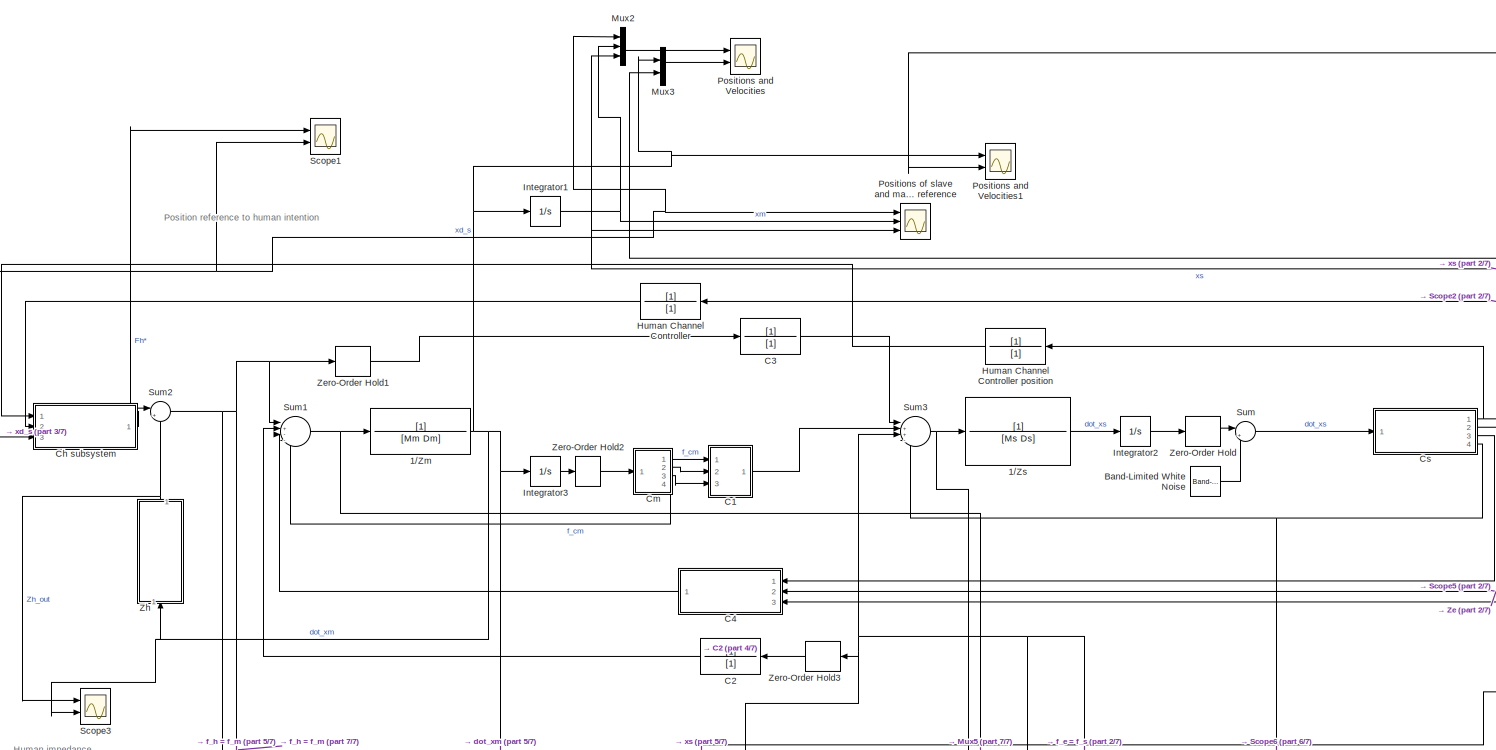
[diagram: root canvas - part 1/7, top center region]
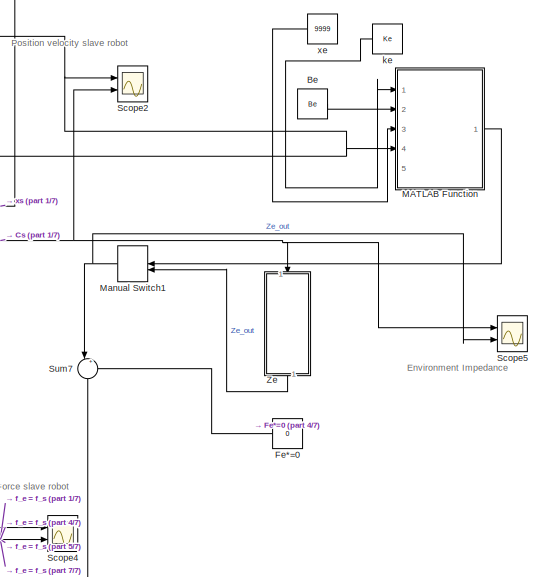
[diagram: root canvas - part 2/7, middle right region]
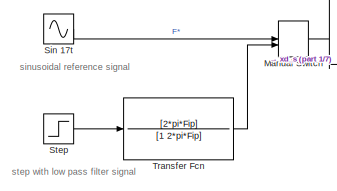
[diagram: root canvas - part 3/7, top left region]
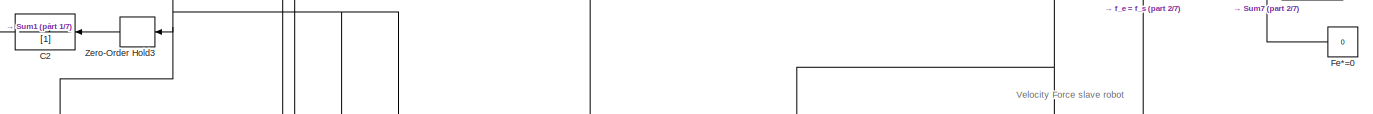
[diagram: root canvas - part 4/7, central region]
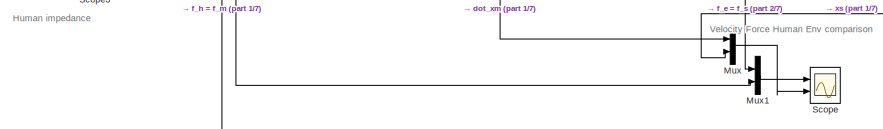
[diagram: root canvas - part 5/7, middle left region]
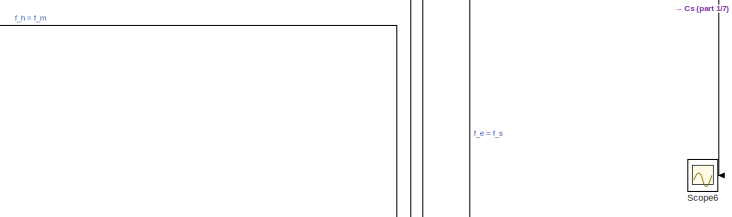
[diagram: root canvas - part 6/7, central region]
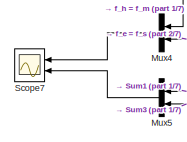
[diagram: root canvas - part 7/7, bottom center region]
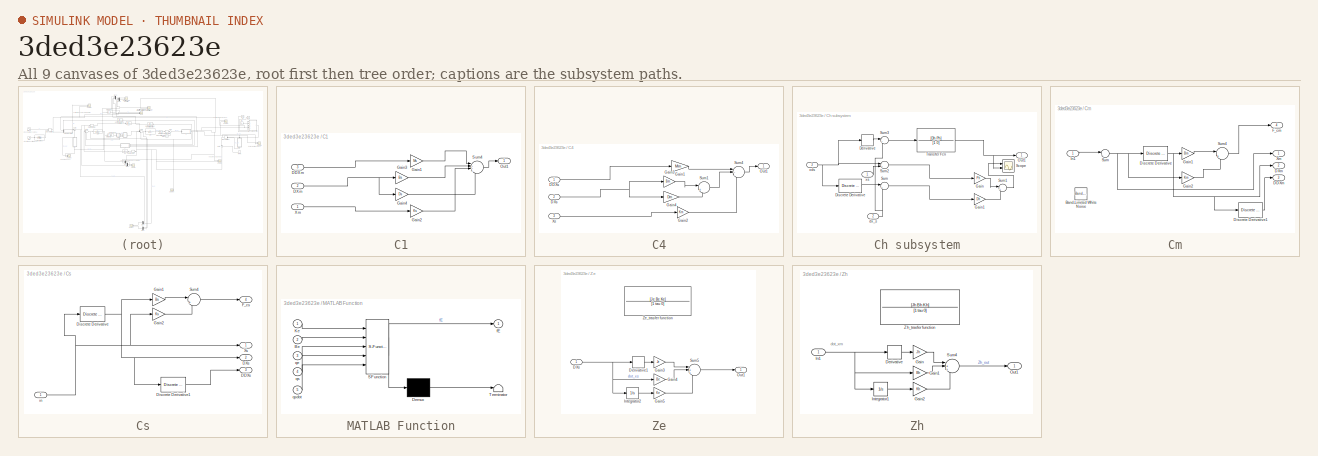
[diagram: thumbnail index - all 9 canvases of the model, root first then tree order]
MODEL slx_3ded3e23623e
KIND model
CONFIG AbsTol = auto
CONFIG EnableMultiTasking = off
CONFIG FixedStep = 0.001
CONFIG MaxStep = auto
CONFIG MinStep = auto
CONFIG RelTol = 1e-3
CONFIG SampleTimeConstraint = Unconstrained
CONFIG SolverName = FixedStepAuto
CONFIG StartTime = 0.0
CONFIG StopTime = 4.0
BLOCK [TransferFcn] 1//Zm
  Denominator = [Mm Dm]
  NameLocation = top
BLOCK [TransferFcn] 1//Zs
  Denominator = [Ms Ds]
  NameLocation = top
BLOCK [Reference] Band-Limited White Noise  REF=simulink/Sources/Band-Limited
White Noise
  Ports = [0, 1]
  SourceBlock = simulink/Sources/Band-Limited\nWhite Noise
  SourceProductBaseCode = SL
  SourceType = Band-Limited White Noise.
BLOCK [Constant] Be
  NameLocation = top
  Value = Be
BLOCK [SubSystem] C1
  Ports = [3, 1]
  RequestExecContextInheritance = off
BLOCK [Inport] C1/DDXm
  Port = 3
BLOCK [Inport] C1/DXm
  Port = 2
BLOCK [Gain] C1/Gain1
  Gain = Ms
BLOCK [Gain] C1/Gain2
  Gain = Ks
BLOCK [Gain] C1/Gain3
  Gain = Bs
BLOCK [Gain] C1/Gain4
  Gain = Ds
BLOCK [Outport] C1/Out1
BLOCK [Sum] C1/Sum4
  Inputs = |++++
  Ports = [4, 1]
BLOCK [Inport] C1/Xm
BLOCK [TransferFcn] C2
  Denominator = [1]
BLOCK [TransferFcn] C3
  Denominator = [1]
  NameLocation = top
BLOCK [SubSystem] C4
  NameLocation = top
  Ports = [3, 1]
  RequestExecContextInheritance = off
BLOCK [Inport] C4/DDXs
BLOCK [Inport] C4/DXs
  Port = 2
BLOCK [Gain] C4/Gain1
  Gain = Mm
BLOCK [Gain] C4/Gain2
  Gain = Km
BLOCK [Gain] C4/Gain3
  Gain = Bm
BLOCK [Gain] C4/Gain4
  Gain = Dm
BLOCK [Outport] C4/Out1
BLOCK [Sum] C4/Sum1
  Inputs = |++
  Ports = [2, 1]
BLOCK [Sum] C4/Sum4
  Inputs = |---
  Ports = [3, 1]
BLOCK [Inport] C4/Xs
  Port = 3
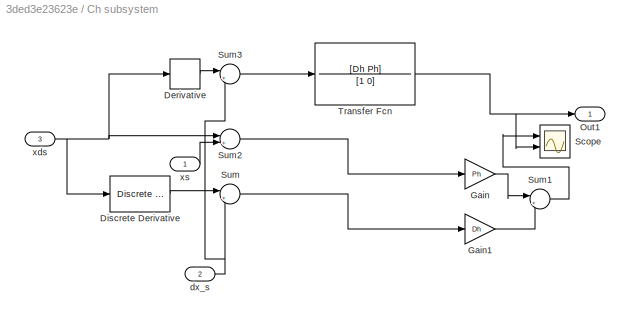
BLOCK [SubSystem] Ch subsystem
  Ports = [3, 1]
  RequestExecContextInheritance = off
BLOCK [Derivative] Ch subsystem/Derivative
BLOCK [Reference] Ch subsystem/Discrete Derivative  REF=simulink/Discrete/Discrete Derivative
  Ports = [1, 1]
  SourceBlock = simulink/Discrete/Discrete Derivative
  SourceProductBaseCode = SL
  SourceType = Discrete Derivative
BLOCK [Gain] Ch subsystem/Gain
  Gain = Ph
BLOCK [Gain] Ch subsystem/Gain1
  Gain = Dh
BLOCK [Outport] Ch subsystem/Out1
BLOCK [Scope] Ch subsystem/Scope
  Floating = off
  NumInputPorts = 2
  Ports = [2]
  ScopeSpecificationString = Simulink.scopes.TimeScopeBlockCfg('CurrentConfiguration', extmgr.ConfigurationSet(extmgr.Configuration('Core','General UI',true),extmgr.Configuration('Core','Source UI',true),extmgr.Configuration('Sources','WiredSimulink',true,'DataLoggingVariableName','ScopeData1'),extmgr.Configuration('Visuals','Time Domain',true,'SerializedDisplays',{struct('MinYLimReal','-241.10515','MaxYLimReal','246.9776','Y...<+1388ch>
BLOCK [Sum] Ch subsystem/Sum
  Inputs = |+-
  Ports = [2, 1]
BLOCK [Sum] Ch subsystem/Sum1
  Inputs = |++
  Ports = [2, 1]
BLOCK [Sum] Ch subsystem/Sum2
  Inputs = |+-
  Ports = [2, 1]
BLOCK [Sum] Ch subsystem/Sum3
  Inputs = |+-
  Ports = [2, 1]
BLOCK [TransferFcn] Ch subsystem/Transfer Fcn
  Denominator = [1 0]
  Numerator = [Dh Ph]
BLOCK [Inport] Ch subsystem/dx_s
  Port = 2
BLOCK [Inport] Ch subsystem/xds
  Port = 3
BLOCK [Inport] Ch subsystem/xs
BLOCK [SubSystem] Cm
  Ports = [1, 4]
  RequestExecContextInheritance = off
BLOCK [Reference] Cm/Band-Limited White Noise  REF=simulink/Sources/Band-Limited
White Noise
  Ports = [0, 1]
  SourceBlock = simulink/Sources/Band-Limited\nWhite Noise
  SourceProductBaseCode = SL
  SourceType = Band-Limited White Noise.
BLOCK [Outport] Cm/DDXm
  Port = 3
BLOCK [Outport] Cm/DXm
  Port = 2
BLOCK [Reference] Cm/Discrete Derivative  REF=simulink/Discrete/Discrete Derivative
  Ports = [1, 1]
  SourceBlock = simulink/Discrete/Discrete Derivative
  SourceProductBaseCode = SL
  SourceType = Discrete Derivative
BLOCK [Reference] Cm/Discrete Derivative1  REF=simulink/Discrete/Discrete Derivative
  Ports = [1, 1]
  SourceBlock = simulink/Discrete/Discrete Derivative
  SourceProductBaseCode = SL
  SourceType = Discrete Derivative
BLOCK [Outport] Cm/F_cm
  Port = 4
BLOCK [Gain] Cm/Gain1
  Gain = Bm
BLOCK [Gain] Cm/Gain2
  Gain = Km
BLOCK [Inport] Cm/In1
BLOCK [Sum] Cm/Sum
  Inputs = |++
  Ports = [2, 1]
BLOCK [Sum] Cm/Sum4
  Inputs = |++
  Ports = [2, 1]
BLOCK [Outport] Cm/Xm
BLOCK [SubSystem] Cs
  Ports = [1, 4]
  RequestExecContextInheritance = off
BLOCK [Outport] Cs/DDXs
  Port = 3
BLOCK [Outport] Cs/DXs
  Port = 2
BLOCK [Reference] Cs/Discrete Derivative  REF=simulink/Discrete/Discrete Derivative
  Ports = [1, 1]
  SourceBlock = simulink/Discrete/Discrete Derivative
  SourceProductBaseCode = SL
  SourceType = Discrete Derivative
BLOCK [Reference] Cs/Discrete Derivative1  REF=simulink/Discrete/Discrete Derivative
  Ports = [1, 1]
  SourceBlock = simulink/Discrete/Discrete Derivative
  SourceProductBaseCode = SL
  SourceType = Discrete Derivative
BLOCK [Outport] Cs/F_cs
  Port = 4
BLOCK [Gain] Cs/Gain1
  Gain = Bs
BLOCK [Gain] Cs/Gain2
  Gain = Ks
BLOCK [Sum] Cs/Sum4
  Inputs = |++
  Ports = [2, 1]
BLOCK [Outport] Cs/Xs
BLOCK [Inport] Cs/in
BLOCK [Constant] Fe*=0
  Value = 0
BLOCK [TransferFcn] Human Channel Controller
  Denominator = [1]
  NameLocation = top
BLOCK [TransferFcn] Human Channel Controller position
  Denominator = [1]
  NameLocation = top
BLOCK [Integrator] Integrator1
  Ports = [1, 1]
BLOCK [Integrator] Integrator2
  Ports = [1, 1]
BLOCK [Integrator] Integrator3
  Ports = [1, 1]
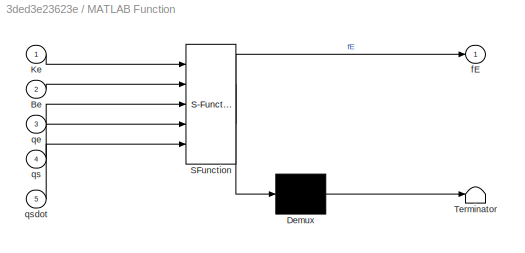
BLOCK [SubSystem] MATLAB Function
  ErrorFcn = Stateflow.Translate.translate
  PermitHierarchicalResolution = ExplicitOnly
  Ports = [5, 1]
  RequestExecContextInheritance = off
  SFBlockType = MATLAB Function
  TreatAsAtomicUnit = on
BLOCK [Demux] MATLAB Function/ Demux 
  Outputs = 1
  Ports = [1, 1]
BLOCK [S-Function] MATLAB Function/ SFunction 
  EnableBusSupport = on
  FunctionName = sf_sfun
  PortCounts = [5 2]
  Ports = [5, 2]
  SFcnIsStateOwnerBlock = off
  SFunctionDeploymentMode = off
  Tag = Stateflow S-Function 2
BLOCK [Terminator] MATLAB Function/ Terminator 
BLOCK [Inport] MATLAB Function/Be
  Port = 2
BLOCK [Inport] MATLAB Function/Ke
BLOCK [Outport] MATLAB Function/fE
BLOCK [Inport] MATLAB Function/qe
  Port = 3
BLOCK [Inport] MATLAB Function/qs
  Port = 4
BLOCK [Inport] MATLAB Function/qsdot
  Port = 5
BLOCK [ManualSwitch] Manual Switch
  CurrentSetting = 0
BLOCK [ManualSwitch] Manual Switch1
  CurrentSetting = 0
  NameLocation = top
BLOCK [Mux] Mux
  DisplayOption = bar
  Inputs = 2
  Ports = [2, 1]
BLOCK [Mux] Mux1
  DisplayOption = bar
  Inputs = 2
  Ports = [2, 1]
BLOCK [Mux] Mux2
  DisplayOption = bar
  Inputs = 3
  Ports = [3, 1]
BLOCK [Mux] Mux3
  DisplayOption = bar
  Inputs = 2
  Ports = [2, 1]
BLOCK [Mux] Mux4
  DisplayOption = bar
  Inputs = 2
  NameLocation = top
  Ports = [2, 1]
BLOCK [Mux] Mux5
  DisplayOption = bar
  Inputs = 2
  NameLocation = top
  Ports = [2, 1]
BLOCK [Scope] Positions and Velocities
  Floating = off
  NumInputPorts = 2
  Ports = [2]
  ScopeSpecificationString = Simulink.scopes.TimeScopeBlockCfg('CurrentConfiguration', extmgr.ConfigurationSet(extmgr.Configuration('Core','General UI',true,'FigureColor',[0.941176470588235 0.941176470588235 0.941176470588235]),extmgr.Configuration('Core','Source UI',true),extmgr.Configuration('Sources','WiredSimulink',true,'DataLoggingVariableName','ScopeData1'),extmgr.Configuration('Visuals','Time Domain',true,'SerializedDi...<+3026ch>
BLOCK [Scope] Positions and Velocities1
  Floating = off
  NumInputPorts = 2
  Ports = [2]
  ScopeSpecificationString = Simulink.scopes.TimeScopeBlockCfg('CurrentConfiguration', extmgr.ConfigurationSet(extmgr.Configuration('Core','General UI',true,'FigureColor',[0.941176470588235 0.941176470588235 0.941176470588235]),extmgr.Configuration('Core','Source UI',true),extmgr.Configuration('Sources','WiredSimulink',true,'DataLoggingVariableName','ScopeData2'),extmgr.Configuration('Visuals','Time Domain',true,'SerializedDi...<+1863ch>
BLOCK [Scope] Positions of slave and master and reference
  Floating = off
  NumInputPorts = 3
  Ports = [3]
  ScopeSpecificationString = Simulink.scopes.TimeScopeBlockCfg('CurrentConfiguration', extmgr.ConfigurationSet(extmgr.Configuration('Core','General UI',true),extmgr.Configuration('Core','Source UI',true),extmgr.Configuration('Sources','WiredSimulink',true,'DataLoggingVariableName','ScopeData1'),extmgr.Configuration('Visuals','Time Domain',true,'SerializedDisplays',{struct('MinYLimReal','-9.61803','MaxYLimReal','9.31494','YLab...<+1556ch>
BLOCK [Scope] Scope
  Floating = off
  NumInputPorts = 2
  Ports = [2]
  ScopeSpecificationString = Simulink.scopes.TimeScopeBlockCfg('CurrentConfiguration', extmgr.ConfigurationSet(extmgr.Configuration('Core','General UI',true,'FigureColor',[0.941176470588235 0.941176470588235 0.941176470588235]),extmgr.Configuration('Core','Source UI',true),extmgr.Configuration('Sources','WiredSimulink',true,'DataLoggingVariableName','ScopeData3'),extmgr.Configuration('Visuals','Time Domain',true,'SerializedDi...<+2415ch>
BLOCK [Scope] Scope1
  Floating = off
  NumInputPorts = 2
  Ports = [2]
  ScopeSpecificationString = Simulink.scopes.TimeScopeBlockCfg('CurrentConfiguration', extmgr.ConfigurationSet(extmgr.Configuration('Core','General UI',true,'FigureColor',[0.941176470588235 0.941176470588235 0.941176470588235]),extmgr.Configuration('Core','Source UI',true),extmgr.Configuration('Sources','WiredSimulink',true,'DataLoggingVariableName','ScopeData7'),extmgr.Configuration('Visuals','Time Domain',true,'SerializedDi...<+1868ch>
BLOCK [Scope] Scope2
  Floating = off
  NumInputPorts = 2
  Ports = [2]
  ScopeSpecificationString = Simulink.scopes.TimeScopeBlockCfg('CurrentConfiguration', extmgr.ConfigurationSet(extmgr.Configuration('Core','General UI',true,'FigureColor',[0.941176470588235 0.941176470588235 0.941176470588235]),extmgr.Configuration('Core','Source UI',true),extmgr.Configuration('Sources','WiredSimulink',true,'DataLoggingVariableName','ScopeData6'),extmgr.Configuration('Visuals','Time Domain',true,'SerializedDi...<+1845ch>
BLOCK [Scope] Scope3
  Floating = off
  NumInputPorts = 2
  Ports = [2]
  ScopeSpecificationString = Simulink.scopes.TimeScopeBlockCfg('CurrentConfiguration', extmgr.ConfigurationSet(extmgr.Configuration('Core','General UI',true,'FigureColor',[0.941176470588235 0.941176470588235 0.941176470588235]),extmgr.Configuration('Core','Source UI',true),extmgr.Configuration('Sources','WiredSimulink',true,'DataLoggingVariableName','ScopeData8'),extmgr.Configuration('Visuals','Time Domain',true,'SerializedDi...<+1865ch>
BLOCK [Scope] Scope4
  Floating = off
  NumInputPorts = 2
  Ports = [2]
  ScopeSpecificationString = Simulink.scopes.TimeScopeBlockCfg('CurrentConfiguration', extmgr.ConfigurationSet(extmgr.Configuration('Core','General UI',true,'FigureColor',[0.941176470588235 0.941176470588235 0.941176470588235]),extmgr.Configuration('Core','Source UI',true),extmgr.Configuration('Sources','WiredSimulink',true,'DataLoggingVariableName','ScopeData4'),extmgr.Configuration('Visuals','Time Domain',true,'SerializedDi...<+2061ch>
BLOCK [Scope] Scope5
  Floating = off
  NumInputPorts = 2
  Ports = [2]
  ScopeSpecificationString = Simulink.scopes.TimeScopeBlockCfg('CurrentConfiguration', extmgr.ConfigurationSet(extmgr.Configuration('Core','General UI',true,'FigureColor',[0.941176470588235 0.941176470588235 0.941176470588235]),extmgr.Configuration('Core','Source UI',true),extmgr.Configuration('Sources','WiredSimulink',true,'DataLoggingVariableName','ScopeData5'),extmgr.Configuration('Visuals','Time Domain',true,'SerializedDi...<+2061ch>
BLOCK [Scope] Scope6
  Floating = off
  NameLocation = top
  NumInputPorts = 1
  Ports = [1]
  ScopeSpecificationString = Simulink.scopes.TimeScopeBlockCfg('CurrentConfiguration', extmgr.ConfigurationSet(extmgr.Configuration('Core','General UI',true),extmgr.Configuration('Core','Source UI',true),extmgr.Configuration('Sources','WiredSimulink',true,'DataLoggingVariableName','ScopeData2'),extmgr.Configuration('Visuals','Time Domain',true,'SerializedDisplays',{struct('MinYLimReal','-2.42917','MaxYLimReal','3.20726','YLab...<+1363ch>
BLOCK [Scope] Scope7
  Floating = off
  NameLocation = top
  NumInputPorts = 2
  Ports = [2]
  ScopeSpecificationString = Simulink.scopes.TimeScopeBlockCfg('CurrentConfiguration', extmgr.ConfigurationSet(extmgr.Configuration('Core','General UI',true,'FigureColor',[0.941176470588235 0.941176470588235 0.941176470588235]),extmgr.Configuration('Core','Source UI',true),extmgr.Configuration('Sources','WiredSimulink',true,'DataLoggingVariableName','ScopeData1'),extmgr.Configuration('Visuals','Time Domain',true,'SerializedDi...<+2798ch>
BLOCK [Sin] Sin 17t
  Amplitude = A
  Frequency = 2*pi*Fc
  Ports = [0, 1]
  SampleTime = 0
BLOCK [Step] Step
  After = A
  SampleTime = 0
BLOCK [Sum] Sum
  Inputs = |++
  Ports = [2, 1]
BLOCK [Sum] Sum1
  Inputs = |+---
  Ports = [4, 1]
BLOCK [Sum] Sum2
  Inputs = |+-
  Ports = [2, 1]
BLOCK [Sum] Sum3
  Inputs = |++--
  Ports = [4, 1]
BLOCK [Sum] Sum7
  Inputs = |++
  NameLocation = right
  Ports = [2, 1]
BLOCK [TransferFcn] Transfer Fcn
  Denominator = [1 2*pi*Fip]
  Numerator = [2*pi*Fip]
BLOCK [SubSystem] Ze
  NameLocation = left
  Ports = [1, 1]
  RequestExecContextInheritance = off
BLOCK [Inport] Ze/DXs
BLOCK [Derivative] Ze/Derivative1
BLOCK [Gain] Ze/Gain3
  Gain = Je
BLOCK [Gain] Ze/Gain4
  Gain = Be
BLOCK [Gain] Ze/Gain5
  Gain = Ke
BLOCK [Integrator] Ze/Integrator2
  Ports = [1, 1]
BLOCK [Outport] Ze/Out1
BLOCK [Sum] Ze/Sum5
  Inputs = |+++
  Ports = [3, 1]
BLOCK [TransferFcn] Ze/Ze_trasfer function
  Commented = on
  Denominator = [1 tau 0]
  NameLocation = right
  Numerator = [Je Be Ke]
BLOCK [ZeroOrderHold] Zero-Order Hold
  SampleTime = -1
BLOCK [ZeroOrderHold] Zero-Order Hold1
  SampleTime = -1
BLOCK [ZeroOrderHold] Zero-Order Hold2
  SampleTime = -1
BLOCK [ZeroOrderHold] Zero-Order Hold3
  NameLocation = top
  SampleTime = -1
BLOCK [SubSystem] Zh
  NameLocation = right
  Ports = [1, 1]
  RequestExecContextInheritance = off
BLOCK [Derivative] Zh/Derivative
BLOCK [Gain] Zh/Gain
  Gain = Jh
BLOCK [Gain] Zh/Gain1
  Gain = Bh
BLOCK [Gain] Zh/Gain2
  Gain = Kh
BLOCK [Inport] Zh/In1
BLOCK [Integrator] Zh/Integrator1
  Ports = [1, 1]
BLOCK [Outport] Zh/Out1
BLOCK [Sum] Zh/Sum4
  Inputs = |+++
  Ports = [3, 1]
BLOCK [TransferFcn] Zh/Zh_trasfer function
  Commented = on
  Denominator = [1 tau 0]
  NameLocation = right
  Numerator = [Jh Bh Kh]
BLOCK [Constant] ke
  Value = Ke
BLOCK [Constant] xe
  Value = 9999
ANNOTATION (root): sinusoidal reference signal
ANNOTATION (root): step with low pass filter signal
ANNOTATION (root): Environment Impedance
ANNOTATION (root): Human impedance
ANNOTATION (root): Position reference to human intention
ANNOTATION (root): Position velocity slave robot
ANNOTATION (root): Velocity Force Human Env comparison
ANNOTATION (root): Velocity Force slave robot
ANNOTATION Zh: dot_xm
NET 1//Zm:1 -> Integrator1:1, Integrator3:1, Mux3:1, Mux:1, Positions and Velocities1:1, Scope3:2, Zh:1
LINE 1//Zs:1 -> Integrator2:1
LINE Band-Limited White Noise:1 -> Sum:2
LINE Be:1 -> MATLAB Function:2
LINE C1/DDXm:1 -> C1/Gain1:1
NET C1/DXm:1 -> C1/Gain3:1, C1/Gain4:1
LINE C1/Gain1:1 -> C1/Sum4:1
LINE C1/Gain2:1 -> C1/Sum4:3
LINE C1/Gain3:1 -> C1/Sum4:2
LINE C1/Gain4:1 -> C1/Sum4:4
LINE C1/Sum4:1 -> C1/Out1:1
LINE C1/Xm:1 -> C1/Gain2:1
LINE C1:1 -> Sum3:2
LINE C2:1 -> Sum1:2
LINE C3:1 -> Sum3:1
LINE C4/DDXs:1 -> C4/Gain1:1
NET C4/DXs:1 -> C4/Gain3:1, C4/Gain4:1
LINE C4/Gain1:1 -> C4/Sum4:1
LINE C4/Gain2:1 -> C4/Sum4:3
LINE C4/Gain3:1 -> C4/Sum1:1
LINE C4/Gain4:1 -> C4/Sum1:2
LINE C4/Sum1:1 -> C4/Sum4:2
LINE C4/Sum4:1 -> C4/Out1:1
LINE C4/Xs:1 -> C4/Gain2:1
LINE C4:1 -> Sum1:3
LINE Ch subsystem/Derivative:1 -> Ch subsystem/Sum3:1
LINE Ch subsystem/Discrete Derivative:1 -> Ch subsystem/Sum:1
LINE Ch subsystem/Gain1:1 -> Ch subsystem/Sum1:2
LINE Ch subsystem/Gain:1 -> Ch subsystem/Sum1:1
LINE Ch subsystem/Sum1:1 -> Ch subsystem/Scope:1
LINE Ch subsystem/Sum2:1 -> Ch subsystem/Gain:1
LINE Ch subsystem/Sum3:1 -> Ch subsystem/Transfer Fcn:1
LINE Ch subsystem/Sum:1 -> Ch subsystem/Gain1:1
NET Ch subsystem/Transfer Fcn:1 -> Ch subsystem/Out1:1, Ch subsystem/Scope:2
NET Ch subsystem/dx_s:1 -> Ch subsystem/Sum3:2, Ch subsystem/Sum:2
NET Ch subsystem/xds:1 -> Ch subsystem/Derivative:1, Ch subsystem/Discrete Derivative:1, Ch subsystem/Sum2:1
LINE Ch subsystem/xs:1 -> Ch subsystem/Sum2:2
NET Ch subsystem:1 -> Scope1:1, Sum2:1
LINE Cm/Discrete Derivative1:1 -> Cm/DDXm:1
NET Cm/Discrete Derivative:1 -> Cm/DXm:1, Cm/Discrete Derivative1:1, Cm/Gain1:1
LINE Cm/Gain1:1 -> Cm/Sum4:1
LINE Cm/Gain2:1 -> Cm/Sum4:2
LINE Cm/In1:1 -> Cm/Sum:1
LINE Cm/Sum4:1 -> Cm/F_cm:1
NET Cm/Sum:1 -> Cm/Discrete Derivative:1, Cm/Gain2:1, Cm/Xm:1
LINE Cm:1 -> C1:1
LINE Cm:2 -> C1:2
LINE Cm:3 -> C1:3
LINE Cm:4 -> Sum1:4
LINE Cs/Discrete Derivative1:1 -> Cs/DDXs:1
NET Cs/Discrete Derivative:1 -> Cs/DXs:1, Cs/Discrete Derivative1:1, Cs/Gain1:1
LINE Cs/Gain1:1 -> Cs/Sum4:1
LINE Cs/Gain2:1 -> Cs/Sum4:2
LINE Cs/Sum4:1 -> Cs/F_cs:1
NET Cs/in:1 -> Cs/Discrete Derivative:1, Cs/Gain2:1, Cs/Xs:1
NET Cs:1 -> C4:3, Human Channel Controller position:1, MATLAB Function:4, Mux2:3, Mux:2, Positions and Velocities1:2, Positions of slave and master and reference:3, Scope2:1, Scope4:1
NET Cs:2 -> C4:2, Human Channel Controller:1, Mux3:2, Scope2:2, Scope5:1, Ze:1
LINE Cs:3 -> C4:1
NET Cs:4 -> Scope6:1, Sum3:4
LINE Fe*=0:1 -> Sum7:2
LINE Human Channel Controller position:1 -> Ch subsystem:1
LINE Human Channel Controller:1 -> Ch subsystem:2
NET Integrator1:1 -> Mux2:2, Positions of slave and master and reference:2
LINE Integrator2:1 -> Zero-Order Hold:1
LINE Integrator3:1 -> Zero-Order Hold2:1
LINE MATLAB Function:1 -> Manual Switch1:1
NET Manual Switch1:1 -> Scope5:2, Sum7:1
NET Manual Switch:1 -> Ch subsystem:3, Mux2:1, Positions of slave and master and reference:1, Scope1:2
LINE Mux1:1 -> Scope:1
LINE Mux2:1 -> Positions and Velocities:1
LINE Mux3:1 -> Positions and Velocities:2
LINE Mux4:1 -> Scope7:1
LINE Mux5:1 -> Scope7:2
LINE Mux:1 -> Scope:2
LINE Sin 17t:1 -> Manual Switch:1
LINE Step:1 -> Transfer Fcn:1
NET Sum1:1 -> 1//Zm:1, Mux5:1
NET Sum2:1 -> Mux1:2, Mux4:1, Sum1:1, Zero-Order Hold1:1
NET Sum3:1 -> 1//Zs:1, Mux5:2
NET Sum7:1 -> Mux1:1, Mux4:2, Scope4:2, Sum3:3, Zero-Order Hold3:1
LINE Sum:1 -> Cs:1
LINE Transfer Fcn:1 -> Manual Switch:2
NET Ze/DXs:1 -> Ze/Derivative1:1, Ze/Gain4:1, Ze/Integrator2:1
LINE Ze/Derivative1:1 -> Ze/Gain3:1
LINE Ze/Gain3:1 -> Ze/Sum5:1
LINE Ze/Gain4:1 -> Ze/Sum5:2
LINE Ze/Gain5:1 -> Ze/Sum5:3
LINE Ze/Integrator2:1 -> Ze/Gain5:1
LINE Ze/Sum5:1 -> Ze/Out1:1
LINE Ze:1 -> Manual Switch1:2
LINE Zero-Order Hold1:1 -> C3:1
LINE Zero-Order Hold2:1 -> Cm:1
LINE Zero-Order Hold3:1 -> C2:1
LINE Zero-Order Hold:1 -> Sum:1
LINE Zh/Derivative:1 -> Zh/Gain:1
LINE Zh/Gain1:1 -> Zh/Sum4:2
LINE Zh/Gain2:1 -> Zh/Sum4:3
LINE Zh/Gain:1 -> Zh/Sum4:1
NET Zh/In1:1 -> Zh/Derivative:1, Zh/Gain1:1, Zh/Integrator1:1
LINE Zh/Integrator1:1 -> Zh/Gain2:1
LINE Zh/Sum4:1 -> Zh/Out1:1
NET Zh:1 -> Scope3:1, Sum2:2
LINE ke:1 -> MATLAB Function:1
LINE xe:1 -> MATLAB Function:3
note: NET lines group one-source signal fan-out (src -> all destinations, sorted); 1:1 wires keep LINE
CHART MATLAB Function states=1 transitions=1
  STATE_LABEL 'eML_blk_kernel()'
  STATE_LABEL 'SCRIPT:\nfunction fE = environment(Ke, Be, qe, qs, qsdot)\n    if qs > qe\n        fE = Ke * (qs - qe) + Be * qsdot;\n    else\n        fE = 0;\n    end\nend\n'
CHART  states=0 transitions=0
